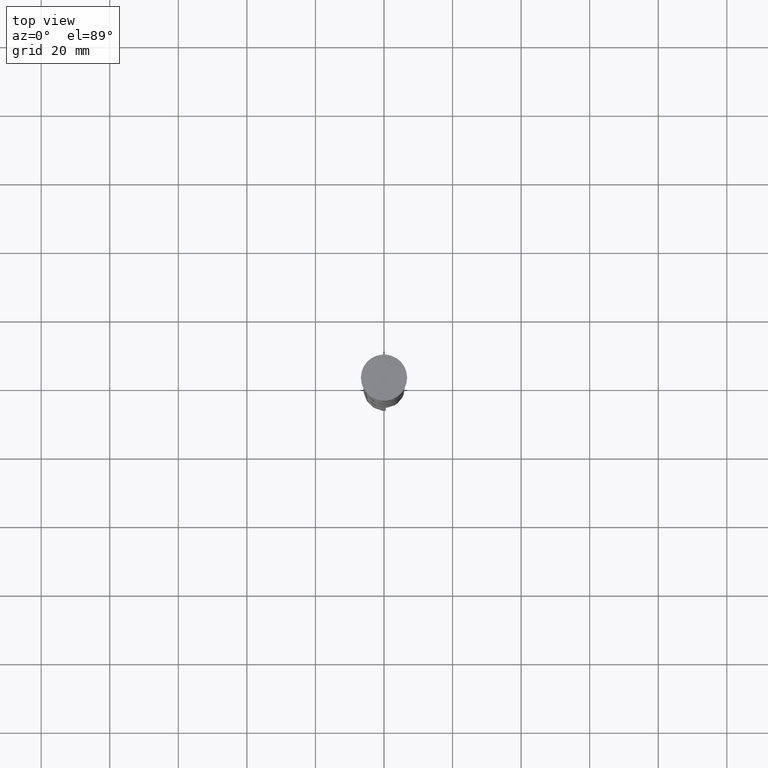
[diagram: clean part render]
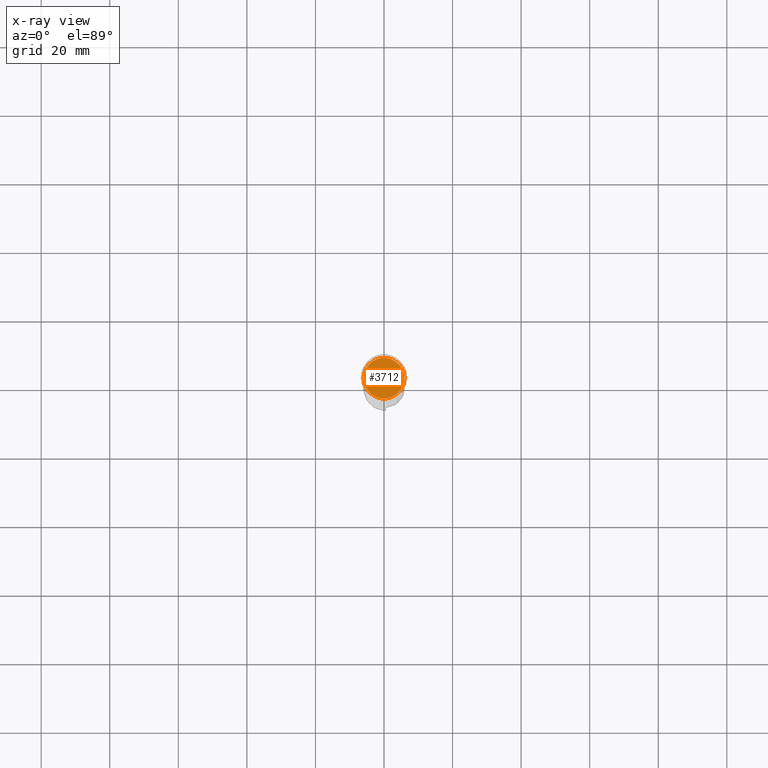
[diagram: x-ray — body ghosted, one internal face saturated and labeled with its STEP entity id]
A machine part, top view, then the same camera in x-ray: the body is ghosted and one INTERNAL B-rep face — a face not visible from any outside direction — is saturated and labeled: STEP entity #3712.
In plain terms, the highlighted planar face has unit normal (0, 0, -1).
Its self-contained STEP definition (entity closure, byte-faithful):
#119 = ORIENTED_EDGE ( 'NONE', *, *, #3641, .T. ) ;
#161 = CARTESIAN_POINT ( 'NONE',  ( 5.950000000000002842, 7.470345474798858237E-16, -10.50000000000000178 ) ) ;
#447 = DIRECTION ( 'NONE',  ( -1.000000000000000000, 0.000000000000000000, 0.000000000000000000 ) ) ;
#653 = CARTESIAN_POINT ( 'NONE',  ( 0.000000000000000000, 0.000000000000000000, -10.50000000000000178 ) ) ;
#666 = AXIS2_PLACEMENT_3D ( 'NONE', #1534, #2719, #3298 ) ;
#736 = DIRECTION ( 'NONE',  ( -0.000000000000000000, -0.000000000000000000, 1.000000000000000000 ) ) ;
#1033 = CIRCLE ( 'NONE', #2470, 5.950000000000002842 ) ;
#1171 = VERTEX_POINT ( 'NONE', #161 ) ;
#1524 = ORIENTED_EDGE ( 'NONE', *, *, #3786, .T. ) ;
#1534 = CARTESIAN_POINT ( 'NONE',  ( 0.000000000000000000, 0.000000000000000000, -10.50000000000000178 ) ) ;
#1638 = CARTESIAN_POINT ( 'NONE',  ( 0.000000000000000000, 0.000000000000000000, -10.50000000000000178 ) ) ;
#2000 = EDGE_LOOP ( 'NONE', ( #119, #1524 ) ) ;
#2068 = VERTEX_POINT ( 'NONE', #2497 ) ;
#2192 = FACE_OUTER_BOUND ( 'NONE', #2000, .T. ) ;
#2444 = DIRECTION ( 'NONE',  ( -1.000000000000000000, 0.000000000000000000, 0.000000000000000000 ) ) ;
#2470 = AXIS2_PLACEMENT_3D ( 'NONE', #653, #3639, #2444 ) ;
#2497 = CARTESIAN_POINT ( 'NONE',  ( -5.950000000000002842, 0.000000000000000000, -10.50000000000000178 ) ) ;
#2719 = DIRECTION ( 'NONE',  ( 0.000000000000000000, 0.000000000000000000, -1.000000000000000000 ) ) ;
#3022 = AXIS2_PLACEMENT_3D ( 'NONE', #1638, #736, #447 ) ;
#3043 = PLANE ( 'NONE',  #666 ) ;
#3140 = CIRCLE ( 'NONE', #3022, 5.950000000000002842 ) ;
#3298 = DIRECTION ( 'NONE',  ( -1.000000000000000000, 0.000000000000000000, -0.000000000000000000 ) ) ;
#3639 = DIRECTION ( 'NONE',  ( -0.000000000000000000, -0.000000000000000000, 1.000000000000000000 ) ) ;
#3641 = EDGE_CURVE ( 'NONE', #2068, #1171, #3140, .T. ) ;
#3712 = ADVANCED_FACE ( 'NONE', ( #2192 ), #3043, .F. ) ;
#3786 = EDGE_CURVE ( 'NONE', #1171, #2068, #1033, .T. ) ;